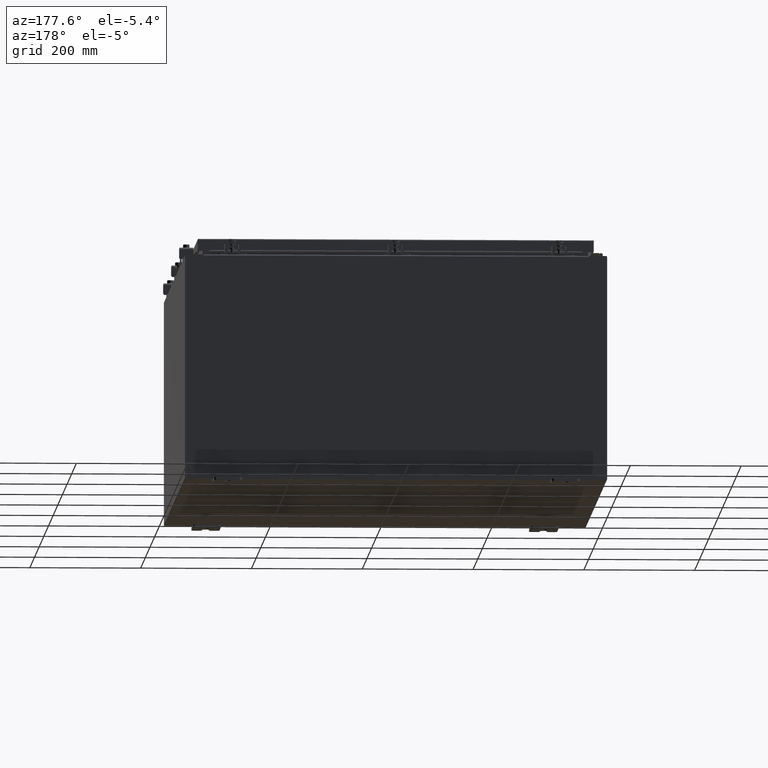
[diagram: clean part render]
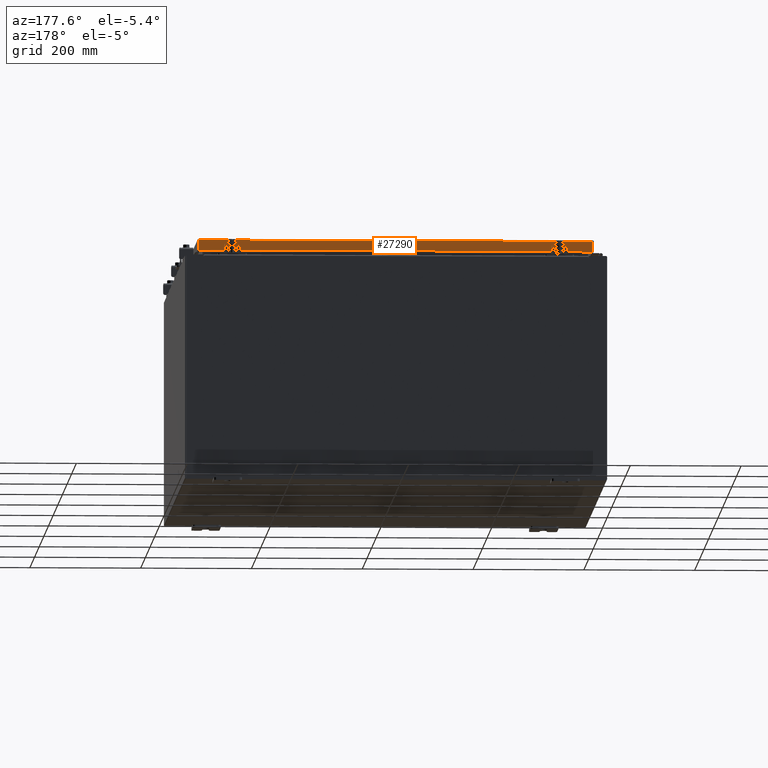
[diagram: same view with one face highlighted and labeled with its STEP entity id]
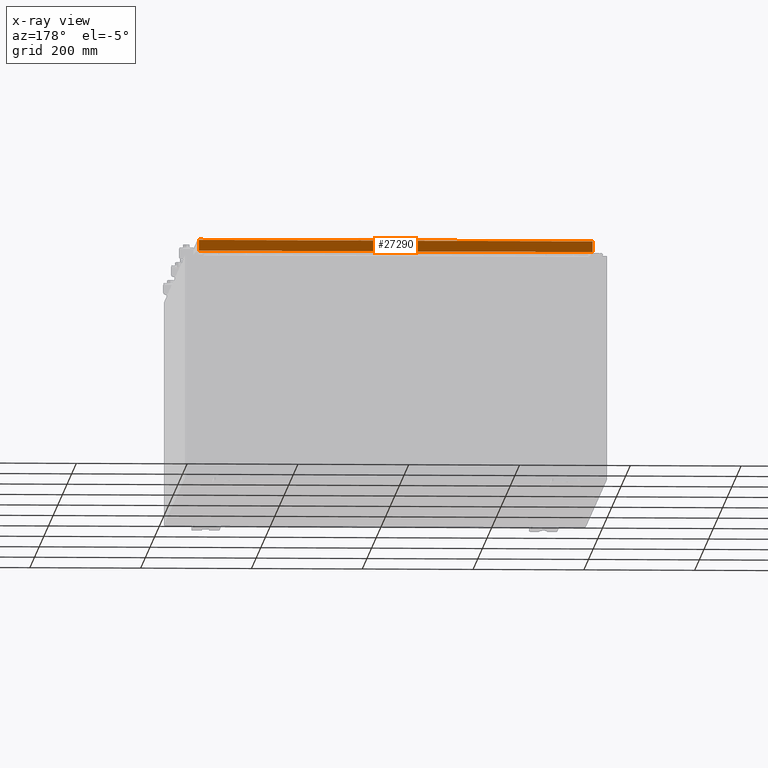
[diagram: x-ray of the same camera — body ghosted, the highlighted face saturated]
A machine part, auxiliary view. The second image highlights one B-rep face of the part: STEP entity #27290.
The next image is the same camera in x-ray: the body ghosted, the highlighted face saturated — about 0% of this face is hidden behind the body in this view.
In plain terms, the highlighted planar face has unit normal (0, -1, -0).
Its self-contained STEP definition (entity closure, byte-faithful):
#64 = DIRECTION ( 'NONE',  ( 1.000000000000000000, -0.0000000000000000000, 1.261330583805775800E-016 ) ) ;
#659 = VECTOR ( 'NONE', #64, 39.37007874015748100 ) ;
#1737 = DIRECTION ( 'NONE',  ( -0.0000000000000000000, 2.818880942772347100E-015, -1.000000000000000000 ) ) ;
#2129 = CARTESIAN_POINT ( 'NONE',  ( -13.23915786437627800, 17.09399999999999400, -0.8500000000000050800 ) ) ;
#2319 = VERTEX_POINT ( 'NONE', #11024 ) ;
#4514 = DIRECTION ( 'NONE',  ( 1.000000000000000000, -0.0000000000000000000, -0.0000000000000000000 ) ) ;
#5029 = DIRECTION ( 'NONE',  ( 0.0000000000000000000, 2.818880942772347100E-015, -1.000000000000000000 ) ) ;
#5694 = EDGE_CURVE ( 'NONE', #21495, #19688, #28403, .T. ) ;
#6809 = ORIENTED_EDGE ( 'NONE', *, *, #24030, .F. ) ;
#8004 = ORIENTED_EDGE ( 'NONE', *, *, #34464, .T. ) ;
#8143 = CARTESIAN_POINT ( 'NONE',  ( 13.23915786437626400, 17.09399999999999400, -0.8500000000000050800 ) ) ;
#10359 = EDGE_CURVE ( 'NONE', #42906, #22315, #38769, .T. ) ;
#10387 = ORIENTED_EDGE ( 'NONE', *, *, #14037, .F. ) ;
#10796 = ORIENTED_EDGE ( 'NONE', *, *, #5694, .F. ) ;
#10907 = CARTESIAN_POINT ( 'NONE',  ( 13.98915786437626500, 17.09400000000000100, -0.08770000000000224800 ) ) ;
#11024 = CARTESIAN_POINT ( 'NONE',  ( 13.98915786437626500, 17.09400000000000500, -0.8499999999999996400 ) ) ;
#11577 = VECTOR ( 'NONE', #5029, 39.37007874015748100 ) ;
#13451 = LINE ( 'NONE', #2129, #20677 ) ;
#14037 = EDGE_CURVE ( 'NONE', #42257, #2319, #40317, .T. ) ;
#14396 = CARTESIAN_POINT ( 'NONE',  ( -14.07800000000000700, 17.09400000000000500, -0.8500000000000032000 ) ) ;
#16895 = EDGE_LOOP ( 'NONE', ( #10796, #8004, #10387, #6809, #23861, #40079 ) ) ;
#17810 = CARTESIAN_POINT ( 'NONE',  ( -14.07800000000000700, 17.09400000000000100, -0.08770000000000007000 ) ) ;
#17868 = CARTESIAN_POINT ( 'NONE',  ( -13.98915786437627600, 17.09400000000000500, -0.8500000000000032000 ) ) ;
#19019 = FACE_OUTER_BOUND ( 'NONE', #16895, .T. ) ;
#19105 = AXIS2_PLACEMENT_3D ( 'NONE', #38877, #38582, #38578 ) ;
#19595 = DIRECTION ( 'NONE',  ( 1.000000000000000000, -0.0000000000000000000, 1.261330583805775800E-016 ) ) ;
#19688 = VERTEX_POINT ( 'NONE', #30432 ) ;
#20677 = VECTOR ( 'NONE', #4514, 39.37007874015748100 ) ;
#21495 = VERTEX_POINT ( 'NONE', #10907 ) ;
#22315 = VERTEX_POINT ( 'NONE', #26149 ) ;
#22413 = CARTESIAN_POINT ( 'NONE',  ( -13.98915786437627600, 17.09400000000000100, -0.07469999999999978000 ) ) ;
#23861 = ORIENTED_EDGE ( 'NONE', *, *, #10359, .F. ) ;
#24030 = EDGE_CURVE ( 'NONE', #22315, #42257, #13451, .T. ) ;
#25848 = VECTOR ( 'NONE', #43346, 39.37007874015748100 ) ;
#26149 = CARTESIAN_POINT ( 'NONE',  ( -13.23915786437627800, 17.09399999999999400, -0.8500000000000050800 ) ) ;
#27043 = CARTESIAN_POINT ( 'NONE',  ( -14.07800000000000700, 17.09400000000000500, -0.8500000000000032000 ) ) ;
#27290 = ADVANCED_FACE ( 'NONE', ( #19019 ), #38742, .F. ) ;
#28403 = LINE ( 'NONE', #17810, #25848 ) ;
#28417 = VECTOR ( 'NONE', #1737, 39.37007874015748100 ) ;
#29803 = VECTOR ( 'NONE', #19595, 39.37007874015748100 ) ;
#30432 = CARTESIAN_POINT ( 'NONE',  ( -13.98915786437627800, 17.09400000000000100, -0.08770000000000115200 ) ) ;
#33047 = EDGE_CURVE ( 'NONE', #19688, #42906, #38152, .T. ) ;
#34464 = EDGE_CURVE ( 'NONE', #21495, #2319, #38116, .T. ) ;
#38116 = LINE ( 'NONE', #41883, #11577 ) ;
#38152 = LINE ( 'NONE', #22413, #28417 ) ;
#38578 = DIRECTION ( 'NONE',  ( 0.0000000000000000000, 2.818880942772347100E-015, -1.000000000000000000 ) ) ;
#38582 = DIRECTION ( 'NONE',  ( 3.555540745226020000E-031, -1.000000000000000000, -2.818880942772347100E-015 ) ) ;
#38742 = PLANE ( 'NONE',  #19105 ) ;
#38769 = LINE ( 'NONE', #14396, #29803 ) ;
#38877 = CARTESIAN_POINT ( 'NONE',  ( -6.077841349889360200E-030, 17.09400000000000100, 4.844676449176209300E-014 ) ) ;
#40079 = ORIENTED_EDGE ( 'NONE', *, *, #33047, .F. ) ;
#40317 = LINE ( 'NONE', #27043, #659 ) ;
#41883 = CARTESIAN_POINT ( 'NONE',  ( 13.98915786437626400, 17.09400000000000100, 4.844676449176209300E-014 ) ) ;
#42257 = VERTEX_POINT ( 'NONE', #8143 ) ;
#42906 = VERTEX_POINT ( 'NONE', #17868 ) ;
#43346 = DIRECTION ( 'NONE',  ( -1.000000000000000000, -5.743565819211262900E-031, 7.762034361881697200E-017 ) ) ;